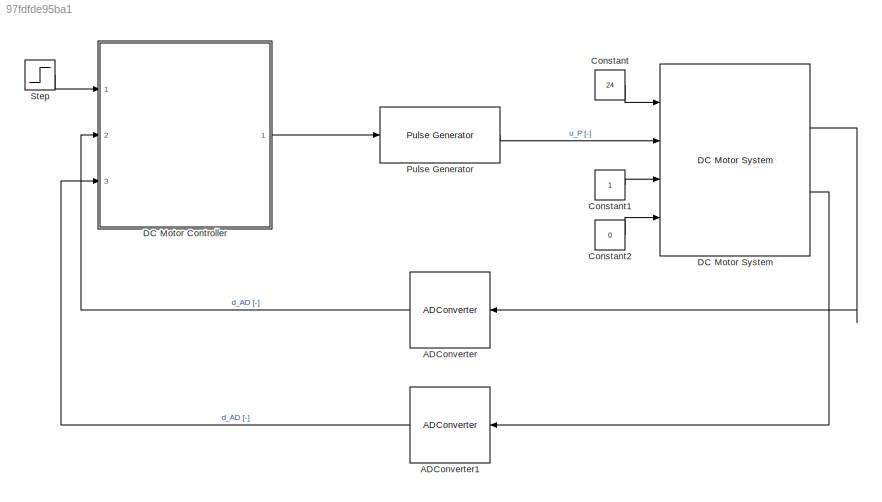
MODEL slx_97fdfde95ba1
KIND model
CONFIG AbsTol = auto
CONFIG EnableMultiTasking = off
CONFIG FixedStep = 0.05
CONFIG MaxStep = auto
CONFIG MinStep = auto
CONFIG RelTol = 1e-3
CONFIG SampleTimeConstraint = Unconstrained
CONFIG SolverName = FixedStepAuto
CONFIG StartTime = 0.0
CONFIG StopTime = Endtime
BLOCK [Reference] ADConverter  REF=MBDLib_2020/Interface/ADConverter
  Ports = [1, 1]
  SourceBlock = MBDLib_2020/Interface/ADConverter
  SourceProductName = MBDLibrary
BLOCK [Reference] ADConverter1  REF=MBDLib_2020/Interface/ADConverter
  Ports = [1, 1]
  SourceBlock = MBDLib_2020/Interface/ADConverter
  SourceProductName = MBDLibrary
BLOCK [Constant] Constant
  Value = 24
BLOCK [Constant] Constant1
BLOCK [Constant] Constant2
  Value = 0
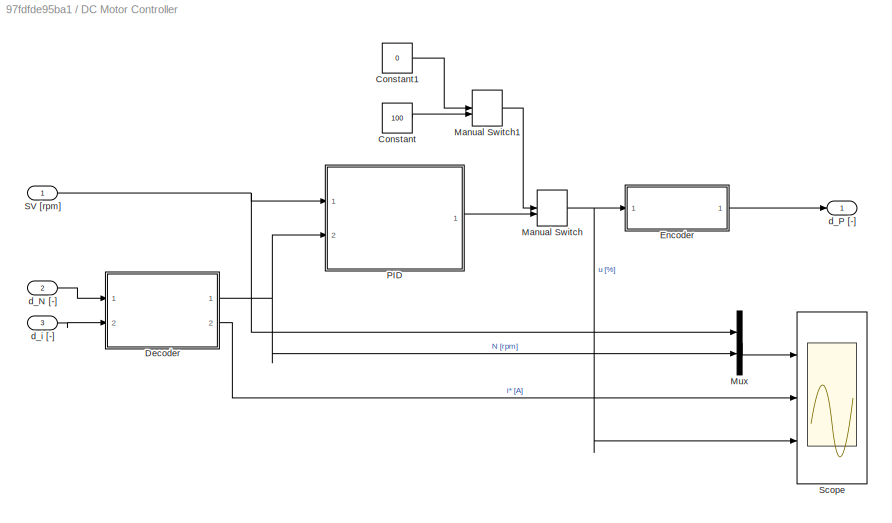
BLOCK [SubSystem] DC Motor Controller
  Ports = [3, 1]
  RequestExecContextInheritance = off
BLOCK [Constant] DC Motor Controller/Constant
  Value = 100
BLOCK [Constant] DC Motor Controller/Constant1
  Value = 0
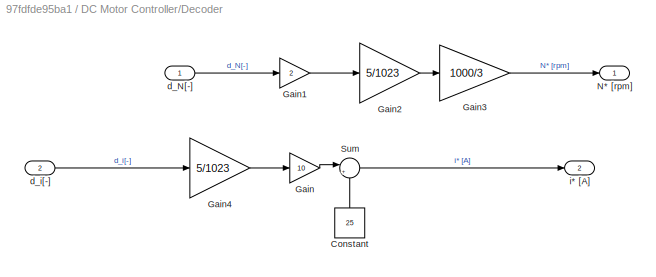
BLOCK [SubSystem] DC Motor Controller/Decoder
  Ports = [2, 2]
  RequestExecContextInheritance = off
BLOCK [Constant] DC Motor Controller/Decoder/Constant
  NameLocation = right
  Value = 25
BLOCK [Gain] DC Motor Controller/Decoder/Gain
  Gain = 10
BLOCK [Gain] DC Motor Controller/Decoder/Gain1
  Gain = 2
BLOCK [Gain] DC Motor Controller/Decoder/Gain2
  Gain = 5/1023
BLOCK [Gain] DC Motor Controller/Decoder/Gain3
  Gain = 1000/3
BLOCK [Gain] DC Motor Controller/Decoder/Gain4
  Gain = 5/1023
BLOCK [Outport] DC Motor Controller/Decoder/N* [rpm]
BLOCK [Sum] DC Motor Controller/Decoder/Sum
  Inputs = |+-
  Ports = [2, 1]
BLOCK [Inport] DC Motor Controller/Decoder/d_N[-]
BLOCK [Inport] DC Motor Controller/Decoder/d_i[-]
  Port = 2
BLOCK [Outport] DC Motor Controller/Decoder/i* [A]
  Port = 2
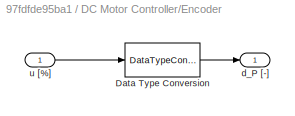
BLOCK [SubSystem] DC Motor Controller/Encoder
  Ports = [1, 1]
  RequestExecContextInheritance = off
BLOCK [DataTypeConversion] DC Motor Controller/Encoder/Data Type Conversion
  RndMeth = Floor
  SaturateOnIntegerOverflow = off
BLOCK [Outport] DC Motor Controller/Encoder/d_P [-]
BLOCK [Inport] DC Motor Controller/Encoder/u [%]
BLOCK [ManualSwitch] DC Motor Controller/Manual Switch
  CurrentSetting = 0
BLOCK [ManualSwitch] DC Motor Controller/Manual Switch1
BLOCK [Mux] DC Motor Controller/Mux
  DisplayOption = bar
  Inputs = 2
  Ports = [2, 1]
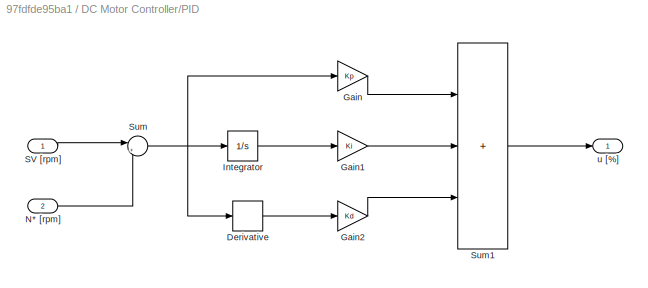
BLOCK [SubSystem] DC Motor Controller/PID
  Ports = [2, 1]
  RequestExecContextInheritance = off
BLOCK [Derivative] DC Motor Controller/PID/Derivative
BLOCK [Gain] DC Motor Controller/PID/Gain
  Gain = Kp
BLOCK [Gain] DC Motor Controller/PID/Gain1
  Gain = Ki
BLOCK [Gain] DC Motor Controller/PID/Gain2
  Gain = Kd
BLOCK [Integrator] DC Motor Controller/PID/Integrator
  Ports = [1, 1]
BLOCK [Inport] DC Motor Controller/PID/N* [rpm]
  Port = 2
BLOCK [Inport] DC Motor Controller/PID/SV [rpm]
BLOCK [Sum] DC Motor Controller/PID/Sum
  Inputs = |+-
  Ports = [2, 1]
BLOCK [Sum] DC Motor Controller/PID/Sum1
  IconShape = rectangular
  Inputs = +++
  Ports = [3, 1]
BLOCK [Outport] DC Motor Controller/PID/u [%]
BLOCK [Inport] DC Motor Controller/SV [rpm]
BLOCK [Scope] DC Motor Controller/Scope
  Floating = off
  NumInputPorts = 3
  Ports = [3]
  ScopeSpecificationString = Simulink.scopes.TimeScopeBlockCfg('CurrentConfiguration', extmgr.ConfigurationSet(extmgr.Configuration('Core','General UI',true),extmgr.Configuration('Core','Source UI',true),extmgr.Configuration('Sources','WiredSimulink',true),extmgr.Configuration('Visuals','Time Domain',true,'SerializedDisplays',{struct('MinYLimReal','-129.31737','MaxYLimReal','1163.8563','YLabelReal','','MinYLimMag',' 0.00000',...<+2707ch>
BLOCK [Inport] DC Motor Controller/d_N [-]
  Port = 2
BLOCK [Outport] DC Motor Controller/d_P [-]
BLOCK [Inport] DC Motor Controller/d_i [-]
  Port = 3
BLOCK [Reference] DC Motor System   REF=MBDLib_2020/Plant/DC Motor System
  Ports = [4, 2]
  SourceBlock = MBDLib_2020/Plant/DC Motor System
  SourceProductName = MBDLibrary
  SourceType = SubSystem
BLOCK [Reference] Pulse Generator   REF=MBDLib_2020/Interface/Pulse Generator
  Ports = [1, 1]
  SourceBlock = MBDLib_2020/Interface/Pulse Generator
  SourceProductName = MBDLibrary
BLOCK [Step] Step
  After = SV
  SampleTime = 0
LINE ADConverter1:1 -> DC Motor Controller:3
LINE ADConverter:1 -> DC Motor Controller:2
LINE Constant1:1 -> DC Motor System :3
LINE Constant2:1 -> DC Motor System :4
LINE Constant:1 -> DC Motor System :1
LINE DC Motor Controller/Constant1:1 -> DC Motor Controller/Manual Switch1:1
LINE DC Motor Controller/Constant:1 -> DC Motor Controller/Manual Switch1:2
LINE DC Motor Controller/Decoder/Constant:1 -> DC Motor Controller/Decoder/Sum:2
LINE DC Motor Controller/Decoder/Gain1:1 -> DC Motor Controller/Decoder/Gain2:1
LINE DC Motor Controller/Decoder/Gain2:1 -> DC Motor Controller/Decoder/Gain3:1
LINE DC Motor Controller/Decoder/Gain3:1 -> DC Motor Controller/Decoder/N* [rpm]:1
LINE DC Motor Controller/Decoder/Gain4:1 -> DC Motor Controller/Decoder/Gain:1
LINE DC Motor Controller/Decoder/Gain:1 -> DC Motor Controller/Decoder/Sum:1
LINE DC Motor Controller/Decoder/Sum:1 -> DC Motor Controller/Decoder/i* [A]:1
LINE DC Motor Controller/Decoder/d_N[-]:1 -> DC Motor Controller/Decoder/Gain1:1
LINE DC Motor Controller/Decoder/d_i[-]:1 -> DC Motor Controller/Decoder/Gain4:1
NET DC Motor Controller/Decoder:1 -> DC Motor Controller/Mux:2, DC Motor Controller/PID:2
LINE DC Motor Controller/Decoder:2 -> DC Motor Controller/Scope:2
LINE DC Motor Controller/Encoder/Data Type Conversion:1 -> DC Motor Controller/Encoder/d_P [-]:1
LINE DC Motor Controller/Encoder/u [%]:1 -> DC Motor Controller/Encoder/Data Type Conversion:1
LINE DC Motor Controller/Encoder:1 -> DC Motor Controller/d_P [-]:1
LINE DC Motor Controller/Manual Switch1:1 -> DC Motor Controller/Manual Switch:1
NET DC Motor Controller/Manual Switch:1 -> DC Motor Controller/Encoder:1, DC Motor Controller/Scope:3
LINE DC Motor Controller/Mux:1 -> DC Motor Controller/Scope:1
LINE DC Motor Controller/PID/Derivative:1 -> DC Motor Controller/PID/Gain2:1
LINE DC Motor Controller/PID/Gain1:1 -> DC Motor Controller/PID/Sum1:2
LINE DC Motor Controller/PID/Gain2:1 -> DC Motor Controller/PID/Sum1:3
LINE DC Motor Controller/PID/Gain:1 -> DC Motor Controller/PID/Sum1:1
LINE DC Motor Controller/PID/Integrator:1 -> DC Motor Controller/PID/Gain1:1
LINE DC Motor Controller/PID/N* [rpm]:1 -> DC Motor Controller/PID/Sum:2
LINE DC Motor Controller/PID/SV [rpm]:1 -> DC Motor Controller/PID/Sum:1
LINE DC Motor Controller/PID/Sum1:1 -> DC Motor Controller/PID/u [%]:1
NET DC Motor Controller/PID/Sum:1 -> DC Motor Controller/PID/Derivative:1, DC Motor Controller/PID/Gain:1, DC Motor Controller/PID/Integrator:1
LINE DC Motor Controller/PID:1 -> DC Motor Controller/Manual Switch:2
NET DC Motor Controller/SV [rpm]:1 -> DC Motor Controller/Mux:1, DC Motor Controller/PID:1
LINE DC Motor Controller/d_N [-]:1 -> DC Motor Controller/Decoder:1
LINE DC Motor Controller/d_i [-]:1 -> DC Motor Controller/Decoder:2
LINE DC Motor Controller:1 -> Pulse Generator :1
LINE DC Motor System :1 -> ADConverter:1
LINE DC Motor System :2 -> ADConverter1:1
LINE Pulse Generator :1 -> DC Motor System :2
LINE Step:1 -> DC Motor Controller:1
note: NET lines group one-source signal fan-out (src -> all destinations, sorted); 1:1 wires keep LINE
